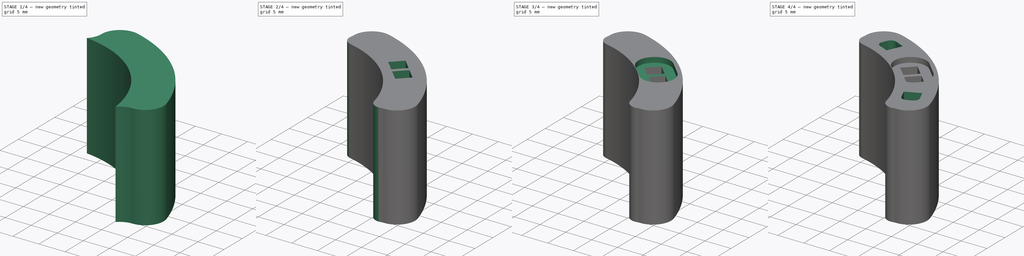
[diagram: build sequence overview — one tinted view per stage of 4, left to right]
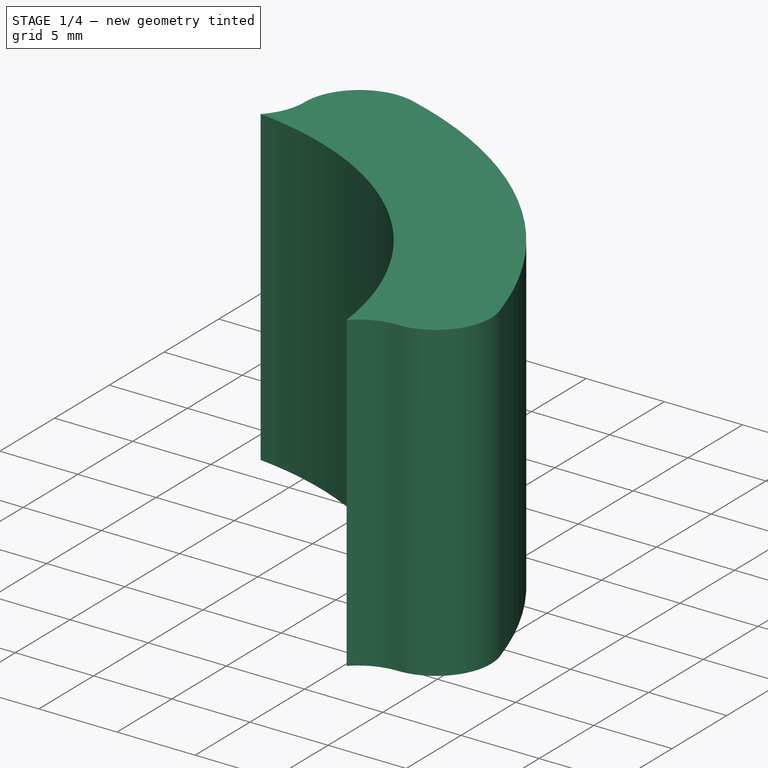
[diagram: stage 1 of 4 — iso view after this stage's code; geometry added in this stage tinted green]
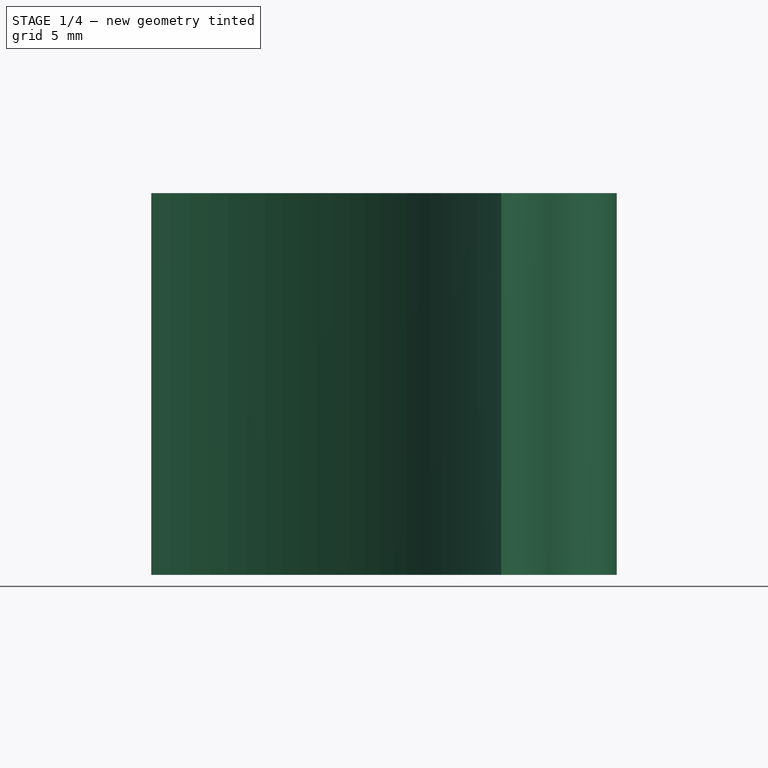
[diagram: stage 1 of 4 — front view after this stage's code; geometry added in this stage tinted green]
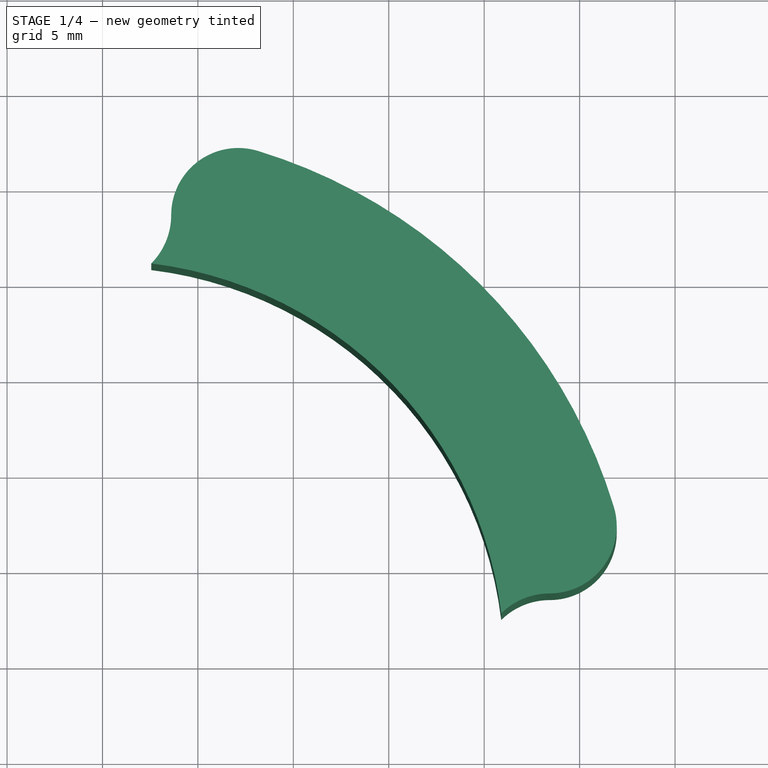
[diagram: stage 1 of 4 — top view after this stage's code; geometry added in this stage tinted green]
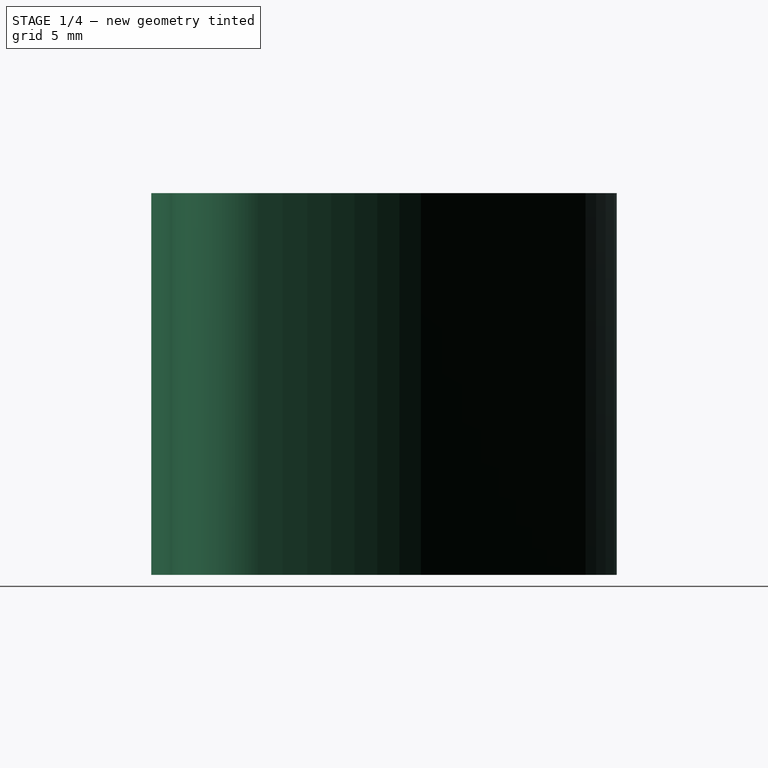
[diagram: stage 1 of 4 — right view after this stage's code; geometry added in this stage tinted green]
FCSTD DOCUMENT  (FreeCAD 1.0R39319 (Git))
Label: sede_presa_elettrica_sup
License: All rights reserved
objects: Sketcher::SketchObject×6, PartDesign::Pocket×5, PartDesign::Fillet×3, PartDesign::Pad×1, PartDesign::Body×1
note: 40 computed .brp shape members not serialized (recipe doc carries the construction recipe); baked Part::Feature solids carry a one-line shape summary decoded from their .brp

FEATURE [Sketcher::SketchObject] Sketch
  ArcFitTolerance = 1e-06
  AttachmentSupport = -> [XY_Plane]
  FullyConstrained = false
  MakeInternals = false
  MapMode = 5
  expr: Constraints[2] = 42.1
  sketch-geometry (10):
    g0: ArcOfCircle CenterX=0 CenterY=0 CenterZ=0 NormalX=0 NormalY=0 NormalZ=1 AngleXU=0 Radius=28 StartAngle=0.294862 EndAngle=1.27593
    g1: ArcOfCircle CenterX=0 CenterY=0 CenterZ=0 NormalX=0 NormalY=0 NormalZ=1 AngleXU=0 Radius=21.05 StartAngle=0.121788 EndAngle=1.44901
    g2: LineSegment [constr] StartX=0 StartY=0 StartZ=0 EndX=0 EndY=23.4279 EndZ=0
    g3: LineSegment [constr] StartX=0 StartY=0 StartZ=0 EndX=23.4279 EndY=0 EndZ=0
    g4: ArcOfCircle CenterX=0 CenterY=23.4279 CenterZ=0 NormalX=0 NormalY=0 NormalZ=1 AngleXU=0 Radius=3.6 StartAngle=5.5024 EndAngle=6.28319
    g5: ArcOfCircle CenterX=23.4279 CenterY=0 CenterZ=0 NormalX=0 NormalY=0 NormalZ=1 AngleXU=0 Radius=3.6 StartAngle=1.5708 EndAngle=2.35158
    g6: LineSegment [constr] StartX=3.6 StartY=31.6516 StartZ=0 EndX=3.6 EndY=15.2402 EndZ=0
    g7: LineSegment [constr] StartX=15.6595 StartY=3.6 StartZ=0 EndX=37.4128 EndY=3.6 EndZ=0
    g8: ArcOfCircle CenterX=7.1154 CenterY=23.4279 CenterZ=0 NormalX=0 NormalY=0 NormalZ=1 AngleXU=0 Radius=3.5154 StartAngle=1.27593 EndAngle=3.14159
    g9: ArcOfCircle CenterX=23.4279 CenterY=7.1154 CenterZ=0 NormalX=0 NormalY=0 NormalZ=1 AngleXU=0 Radius=3.5154 StartAngle=4.71239 EndAngle=6.57805
  constraints (26):
    c: Diameter(g0) = 56
    c: Coincident(g0,g-1)
    c: Diameter(g1) = 42.1
    c: Coincident(g1,g0)
    c: Distance(g2) = 23.4279
    c: Coincident(g2,g0)
    c: PointOnObject(g2,g-2)
    c: Distance(g3) = 23.4279
    c: Coincident(g3,g0)
    c: PointOnObject(g3,g-1)
    c: Diameter(g4) = 7.2
    c: Coincident(g4,g2)
    c: Diameter(g5) = 7.2
    c: Coincident(g5,g3)
    c: Vertical(g6)
    c: Horizontal(g7)
    c: Tangent(g6,g4)
    c: Tangent(g8,g6)
    c: Tangent(g9,g5)
    c: Tangent(g9,g7) = -1.5708
    c: Tangent(g5,g7) = 1.5708
    c: Coincident(g1,g4)
    c: Tangent(g0,g8) = -1.5708
    c: Coincident(g5,g1)
    c: Tangent(g0,g9) = -1.5708
    c: Coincident(g4,g8)
FEATURE [PartDesign::Pad] Pad
  Direction = (0,0,1)
  Length = 20
  Length2 = 10
  Profile = -> Sketch
  ReferenceAxis = -> Sketch [N_Axis]
  Refine = true
  Suppressed = false
  Type = 0
FEATURE [Sketcher::SketchObject] Sketch001
  ArcFitTolerance = 1e-06
  AttachmentSupport = -> [Pad]
  FullyConstrained = false
  MakeInternals = false
  MapMode = 5
  Placement = pos=(0,0,20) rot=(0,0,1;0rad)
  sketch-geometry (11):
    g0: Circle [constr] CenterX=0 CenterY=0 CenterZ=0 NormalX=0 NormalY=0 NormalZ=1 AngleXU=0 Radius=20.83
    g1: Circle [constr] CenterX=0 CenterY=0 CenterZ=0 NormalX=0 NormalY=0 NormalZ=1 AngleXU=0 Radius=28
    g2: LineSegment [constr] StartX=14.389 StartY=25.209 StartZ=0 EndX=28.5311 EndY=11.0669 EndZ=0
    g3: LineSegment [constr] StartX=9.32039 StartY=20.1377 StartZ=0 EndX=23.4625 EndY=5.99554 EndZ=0
    g4: LineSegment [constr] StartX=14.0368 StartY=24.8541 StartZ=0 EndX=28.1789 EndY=10.7119 EndZ=0
    g5: LineSegment [constr] StartX=11.6798 StartY=22.4947 StartZ=0 EndX=25.8219 EndY=8.35253 EndZ=0
    g6: LineSegment StartX=15.8675 StartY=22.6557 StartZ=0 EndX=22.6557 EndY=15.8675 EndZ=0
    g7: LineSegment StartX=11.5188 StartY=18.307 StartZ=0 EndX=18.307 EndY=11.5188 EndZ=0
    g8: LineSegment StartX=11.5188 StartY=18.307 StartZ=0 EndX=15.8675 EndY=22.6557 EndZ=0
    g9: LineSegment [constr] StartX=0 StartY=0 StartZ=0 EndX=19.799 EndY=19.799 EndZ=0
    g10: LineSegment StartX=18.307 StartY=11.5188 StartZ=0 EndX=22.6557 EndY=15.8675 EndZ=0
  constraints (29):
    c: Diameter(g0) = 41.66
    c: Coincident(g0,g-1)
    c: Diameter(g1) = 56
    c: Coincident(g1,g0)
    c: Distance(g2) = 20
    c: Angle(g-1,g2) = -0.785398
    c: Distance(g3) = 20
    c: Angle(g-1,g3) = -0.785398
    c: Distance(g4) = 20
    c: Angle(g-1,g4) = -0.785398
    c: Tangent(g2,g1)
    c: Distance(g4,g2) = 0.5
    c: Tangent(g3,g0)
    c: Distance(g5) = 20
    c: Angle(g-1,g5) = -0.785398
    c: Symmetric(g4,g3,g5)
    c: Distance(g6) = 9.6
    c: Angle(g-1,g6) = -0.785398
    c: Distance(g7) = 9.6
    c: Angle(g-1,g7) = -0.785398
    c: Coincident(g8,g7)
    c: Coincident(g8,g6)
    c: Distance(g7,g6) = 6.15
    c: Symmetric(g7,g6,g5)
    c: Coincident(g9,g0)
    c: PointOnObject(g9,g1)
    c: Symmetric(g6,g6,g9)
    c: Coincident(g10,g7)
    c: Coincident(g10,g6)
FEATURE [Sketcher::SketchObject] Sketch002
  ArcFitTolerance = 1e-06
  FullyConstrained = true
  MakeInternals = false
  MapMode = 5
  Placement = pos=(0,0,6) rot=(0,0,1;0rad)
  sketch-geometry (4):
    g0: LineSegment [constr] StartX=13.6931 StartY=20.4814 StartZ=0 EndX=20.4813 EndY=13.6931 EndZ=0
    g1: Circle CenterX=15.8144 CenterY=18.36 CenterZ=0 NormalX=0 NormalY=0 NormalZ=1 AngleXU=0 Radius=1
    g2: Circle CenterX=18.36 CenterY=15.8144 CenterZ=0 NormalX=0 NormalY=0 NormalZ=1 AngleXU=0 Radius=1
    g3: LineSegment [constr] StartX=14.9129 StartY=14.9129 StartZ=0 EndX=19.2616 EndY=19.2616 EndZ=0
  constraints (11):
    c: Symmetric(g-5,g-5,g0)
    c: Symmetric(g-6,g-6,g0)
    c: Diameter(g1) = 2
    c: PointOnObject(g1,g0)
    c: Diameter(g2) = 2
    c: PointOnObject(g2,g0)
    c: PointOnObject(g3,g-4)
    c: Symmetric(g-3,g-3,g3)
    c: Angle(g-1,g3) = 0.785398
    c: Distance(g1,g3) = 1.8
    c: Distance(g2,g3) = 1.8
FEATURE [PartDesign::Pocket] Pocket001
  BaseFeature = -> Pad
  Direction = (0,0,-1)
  Length = 5
  Length2 = 5
  Profile = -> Sketch002
  ReferenceAxis = -> Sketch002 [N_Axis]
  Refine = true
  Suppressed = false
  Type = 1
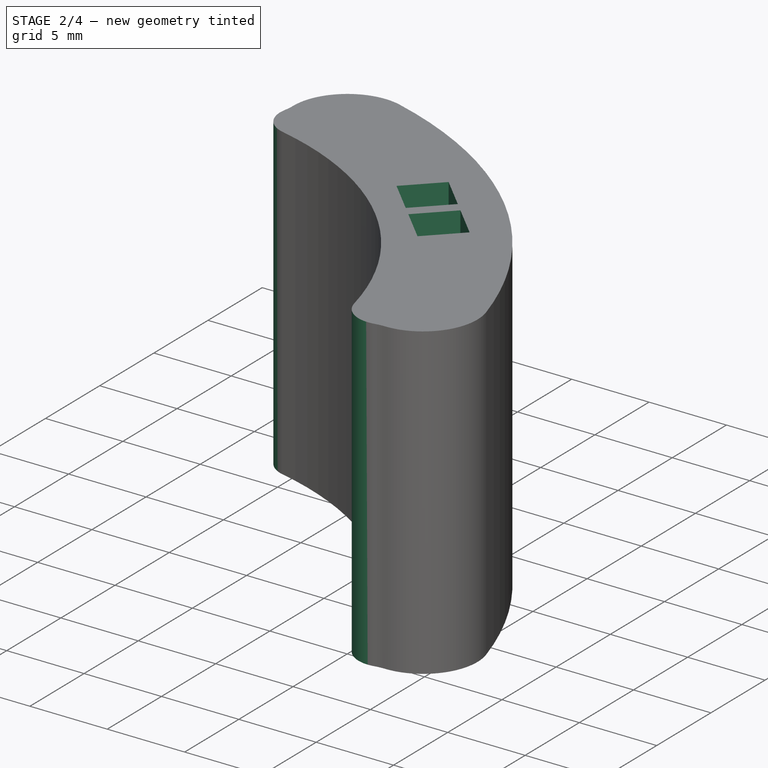
[diagram: stage 2 of 4 — iso view after this stage's code; geometry added in this stage tinted green]
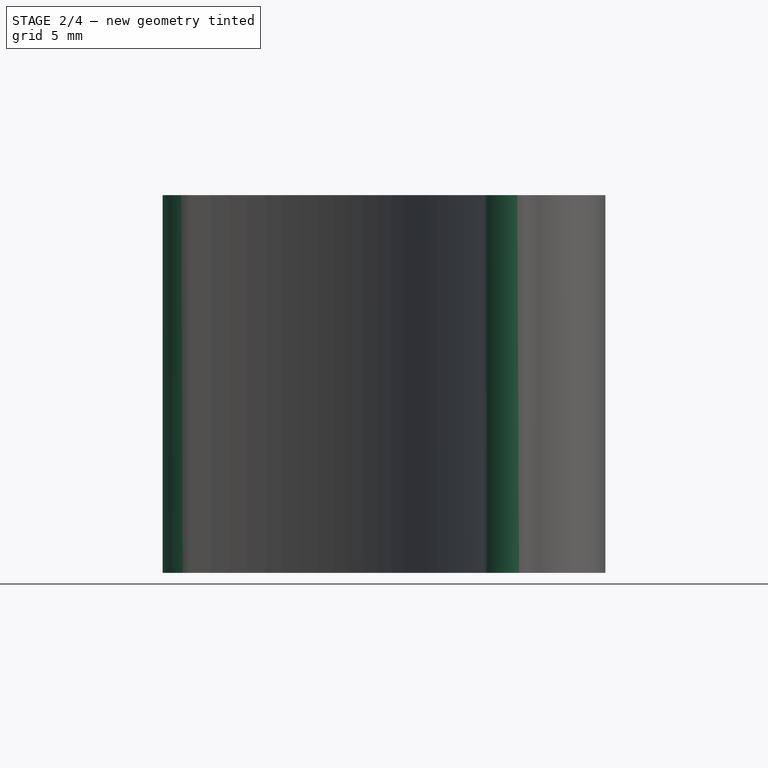
[diagram: stage 2 of 4 — front view after this stage's code; geometry added in this stage tinted green]
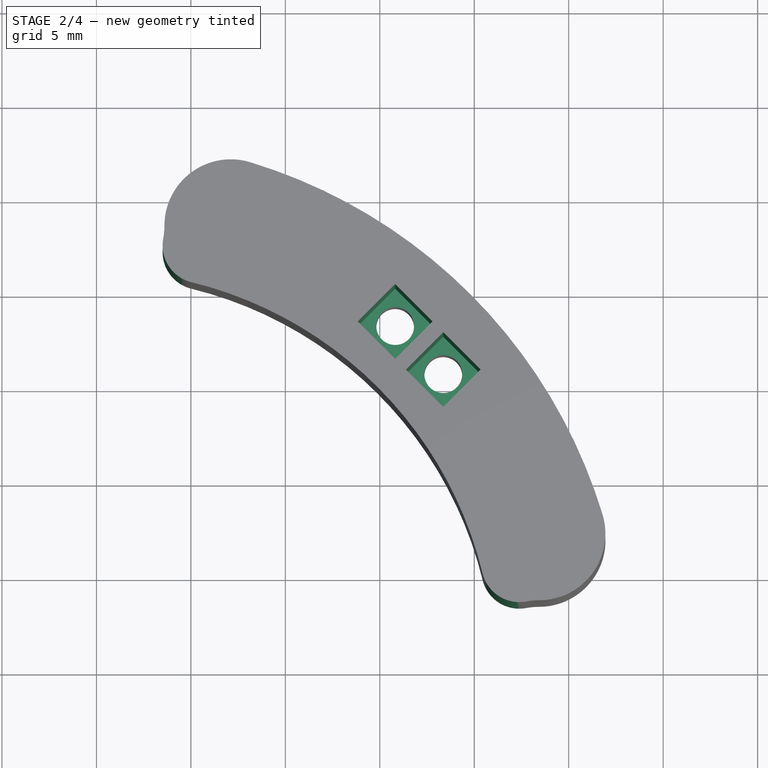
[diagram: stage 2 of 4 — top view after this stage's code; geometry added in this stage tinted green]
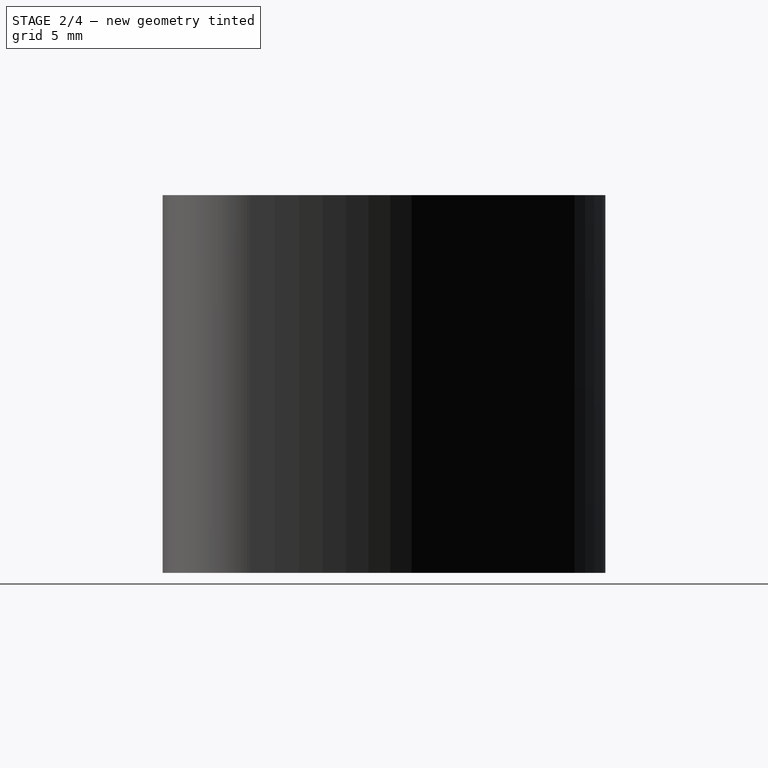
[diagram: stage 2 of 4 — right view after this stage's code; geometry added in this stage tinted green]
FEATURE [PartDesign::Fillet] Fillet001
  Base = -> Pocket001 [Edge19,Edge5]
  BaseFeature = -> Pocket001
  Radius = 2
  Refine = true
  SupportTransform = false
  Suppressed = false
  UseAllEdges = false
FEATURE [Sketcher::SketchObject] Sketch003
  ArcFitTolerance = 1e-06
  AttachmentSupport = -> [Fillet001]
  ExternalGeometry = -> [Fillet001,Sketch001]
  FullyConstrained = true
  MakeInternals = false
  MapMode = 5
  Placement = pos=(0,0,6) rot=(1,0,0;3.14159rad)
  sketch-geometry (14):
    g0: LineSegment StartX=13.8345 StartY=-18.36 StartZ=0 EndX=15.8144 EndY=-20.3399 EndZ=0
    g1: LineSegment StartX=15.8144 StartY=-20.3399 StartZ=0 EndX=17.7943 EndY=-18.36 EndZ=0
    g2: LineSegment StartX=17.7943 StartY=-18.36 StartZ=0 EndX=15.8144 EndY=-16.3801 EndZ=0
    g3: LineSegment StartX=15.8144 StartY=-16.3801 StartZ=0 EndX=13.8345 EndY=-18.36 EndZ=0
    g4: LineSegment StartX=16.3801 StartY=-15.8144 StartZ=0 EndX=18.36 EndY=-17.7943 EndZ=0
    g5: LineSegment StartX=18.36 StartY=-17.7943 StartZ=0 EndX=20.3399 EndY=-15.8144 EndZ=0
    g6: LineSegment StartX=20.3399 StartY=-15.8144 StartZ=0 EndX=18.36 EndY=-13.8345 EndZ=0
    g7: LineSegment StartX=18.36 StartY=-13.8345 StartZ=0 EndX=16.3801 EndY=-15.8144 EndZ=0
    g8: LineSegment [constr] StartX=15.8144 StartY=-16.3801 StartZ=0 EndX=15.8144 EndY=-20.3399 EndZ=0
    g9: LineSegment [constr] StartX=17.7943 StartY=-18.36 StartZ=0 EndX=13.8345 EndY=-18.36 EndZ=0
    g10: LineSegment [constr] StartX=18.36 StartY=-13.8345 StartZ=0 EndX=18.36 EndY=-17.7943 EndZ=0
    g11: LineSegment [constr] StartX=16.3801 StartY=-15.8144 StartZ=0 EndX=20.3399 EndY=-15.8144 EndZ=0
    g12: GeomPoint [constr] X=18.36 Y=-15.8144 Z=0
    g13: GeomPoint [constr] X=15.8144 Y=-18.36 Z=0
  constraints (34):
    c: Coincident(g0,g1)
    c: Coincident(g1,g2)
    c: Coincident(g2,g3)
    c: Coincident(g3,g0)
    c: Coincident(g4,g5)
    c: Coincident(g5,g6)
    c: Coincident(g6,g7)
    c: Coincident(g7,g4)
    c: Parallel(g3,g-4)
    c: Parallel(g1,g-7)
    c: Parallel(g0,g-5)
    c: Parallel(g2,g0)
    c: Parallel(g4,g-6)
    c: Parallel(g6,g-6)
    c: Parallel(g7,g-4)
    c: Parallel(g5,g-7)
    c: Coincident(g8,g2)
    c: Coincident(g8,g0)
    c: Coincident(g9,g1)
    c: Coincident(g9,g0)
    c: Coincident(g10,g6)
    c: Coincident(g10,g4)
    c: Coincident(g11,g4)
    c: Coincident(g11,g5)
    c: PointOnObject(g12,g10)
    c: PointOnObject(g13,g8)
    c: PointOnObject(g13,g9)
    c: PointOnObject(g12,g11)
    c: Coincident(g12,g-3)
    c: Equal(g4,g7)
    c: Equal(g2,g4)
    c: Equal(g2,g3)
    c: Distance(g0,g0) = 2.8
    c: Coincident(g13,g-8)
FEATURE [PartDesign::Pocket] Pocket
  BaseFeature = -> Fillet001
  Direction = (0,0,1)
  Length = 14
  Length2 = 5
  Profile = -> Sketch003
  ReferenceAxis = -> Sketch003 [N_Axis]
  Refine = true
  Suppressed = false
  Type = 0
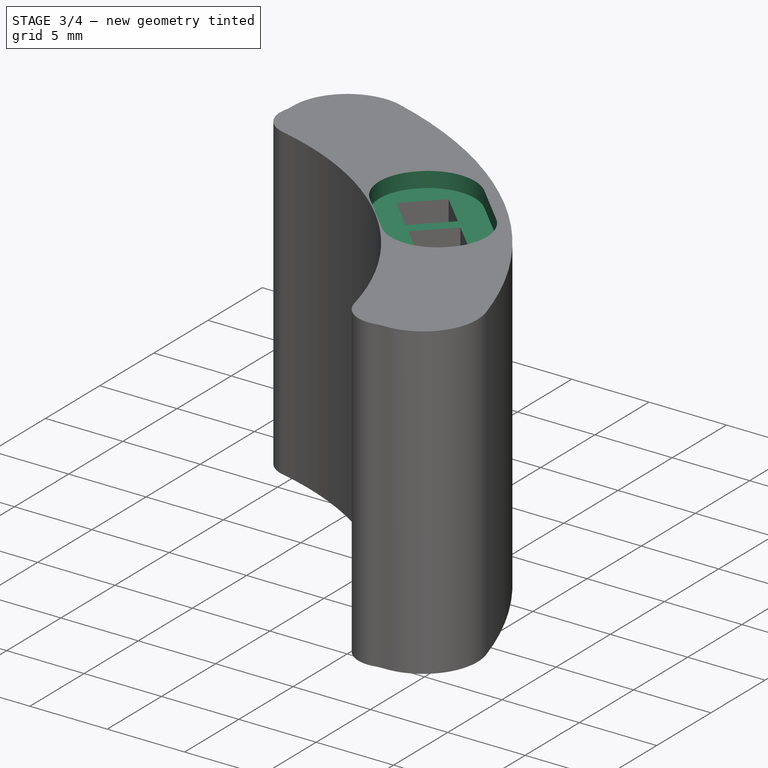
[diagram: stage 3 of 4 — iso view after this stage's code; geometry added in this stage tinted green]
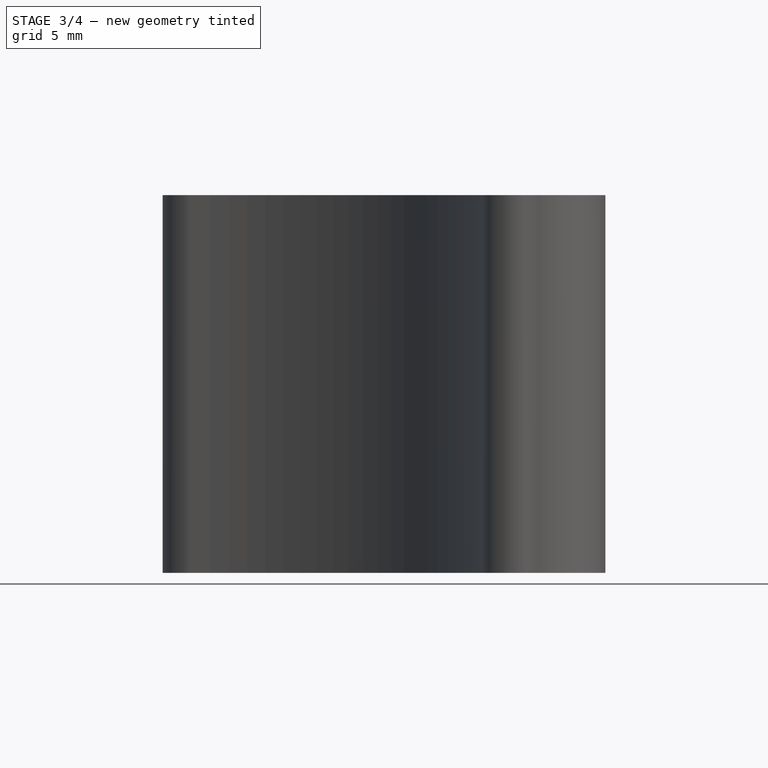
[diagram: stage 3 of 4 — front view after this stage's code; geometry added in this stage tinted green]
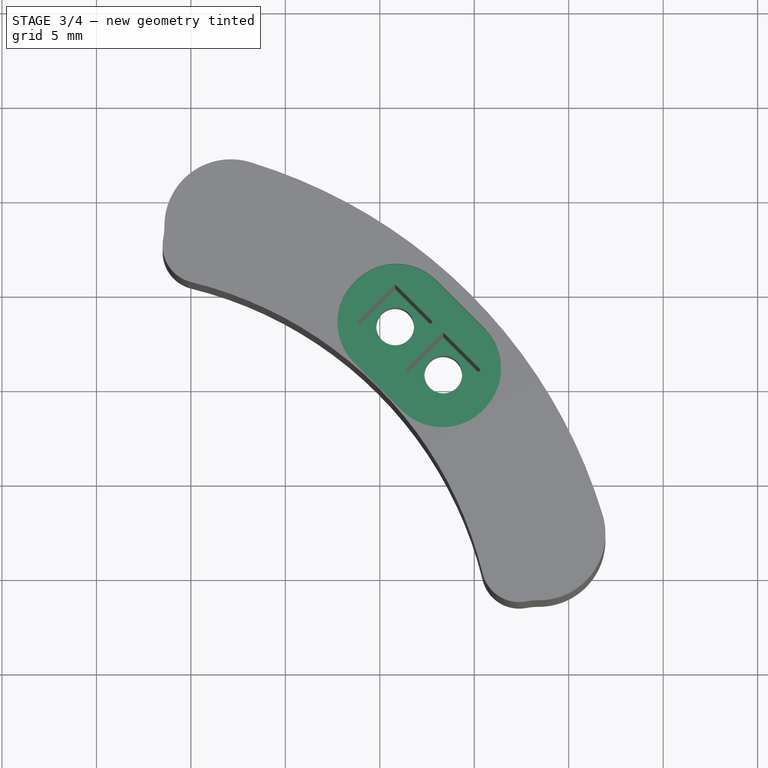
[diagram: stage 3 of 4 — top view after this stage's code; geometry added in this stage tinted green]
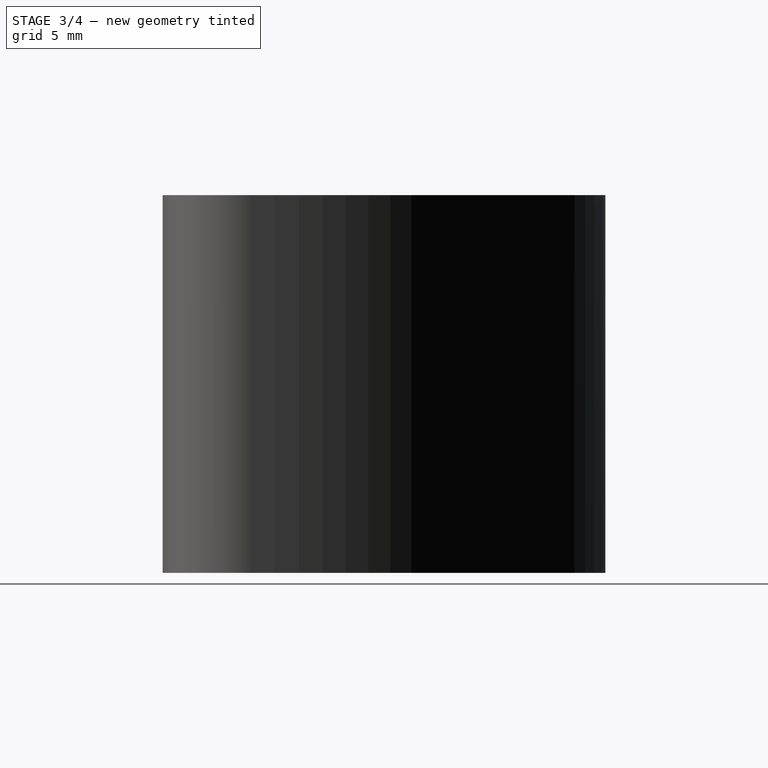
[diagram: stage 3 of 4 — right view after this stage's code; geometry added in this stage tinted green]
FEATURE [PartDesign::Pocket] Pocket002
  BaseFeature = -> Pocket
  Direction = (0,0,-1)
  Length = 1
  Length2 = 5
  Profile = -> Sketch001
  ReferenceAxis = -> Sketch001 [N_Axis]
  Refine = true
  Suppressed = false
  Type = 0
FEATURE [PartDesign::Fillet] Fillet
  Base = -> Pocket002 [Edge40,Edge38,Edge35,Edge36]
  BaseFeature = -> Pocket002
  Radius = 3
  Refine = true
  SupportTransform = false
  Suppressed = false
  UseAllEdges = false
FEATURE [Sketcher::SketchObject] Sketch004
  ArcFitTolerance = 1e-06
  AttachmentSupport = -> [Fillet]
  ExternalGeometry = -> [Fillet]
  FullyConstrained = true
  MakeInternals = false
  MapMode = 5
  Placement = pos=(0,0,6) rot=(0,0,1;0rad)
  sketch-geometry (8):
    g0: LineSegment StartX=15.8144 StartY=20.3399 StartZ=0 EndX=17.7943 EndY=18.36 EndZ=0
    g1: LineSegment StartX=17.7943 StartY=18.36 StartZ=0 EndX=15.8144 EndY=16.3801 EndZ=0
    g2: LineSegment StartX=15.8144 StartY=16.3801 StartZ=0 EndX=13.8345 EndY=18.36 EndZ=0
    g3: LineSegment StartX=18.36 StartY=13.8345 StartZ=0 EndX=20.3399 EndY=15.8144 EndZ=0
    g4: LineSegment StartX=20.3399 StartY=15.8144 StartZ=0 EndX=18.36 EndY=17.7943 EndZ=0
    g5: LineSegment StartX=18.36 StartY=17.7943 StartZ=0 EndX=16.3801 EndY=15.8144 EndZ=0
    g6: LineSegment StartX=16.3801 StartY=15.8144 StartZ=0 EndX=18.36 EndY=13.8345 EndZ=0
    g7: LineSegment StartX=15.8144 StartY=20.3399 StartZ=0 EndX=13.8345 EndY=18.36 EndZ=0
  constraints (16):
    c: Coincident(g-4,g0)
    c: Coincident(g0,g-6)
    c: Coincident(g0,g1)
    c: Coincident(g1,g-6)
    c: Coincident(g1,g2)
    c: Coincident(g2,g-5)
    c: Coincident(g-10,g3)
    c: Coincident(g3,g-9)
    c: Coincident(g3,g4)
    c: Coincident(g4,g-8)
    c: Coincident(g4,g5)
    c: Coincident(g5,g-10)
    c: Coincident(g5,g6)
    c: Coincident(g6,g3)
    c: Coincident(g7,g0)
    c: Coincident(g7,g2)
FEATURE [PartDesign::Pocket] Pocket003
  BaseFeature = -> Fillet
  Direction = (0,0,-1)
  Length = 1
  Length2 = 5
  Profile = -> Sketch004
  ReferenceAxis = -> Sketch004 [N_Axis]
  Refine = true
  Suppressed = false
  Type = 0
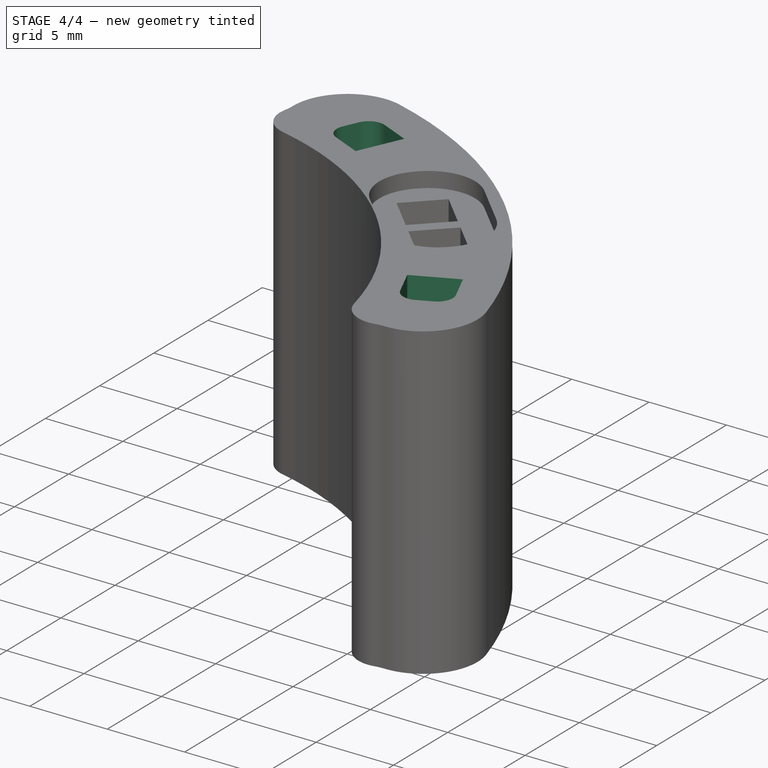
[diagram: stage 4 of 4 — iso view after this stage's code; geometry added in this stage tinted green]
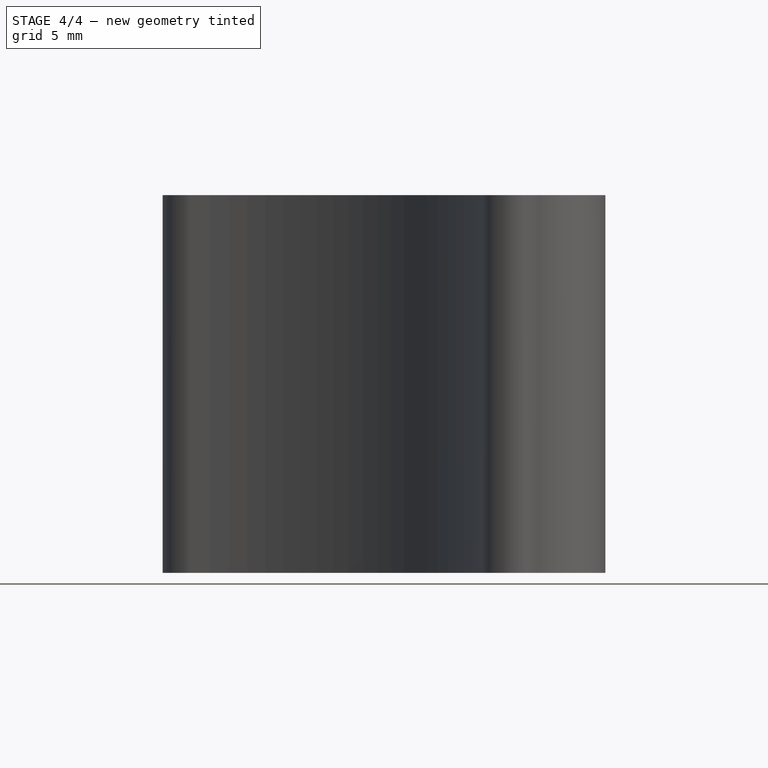
[diagram: stage 4 of 4 — front view after this stage's code; geometry added in this stage tinted green]
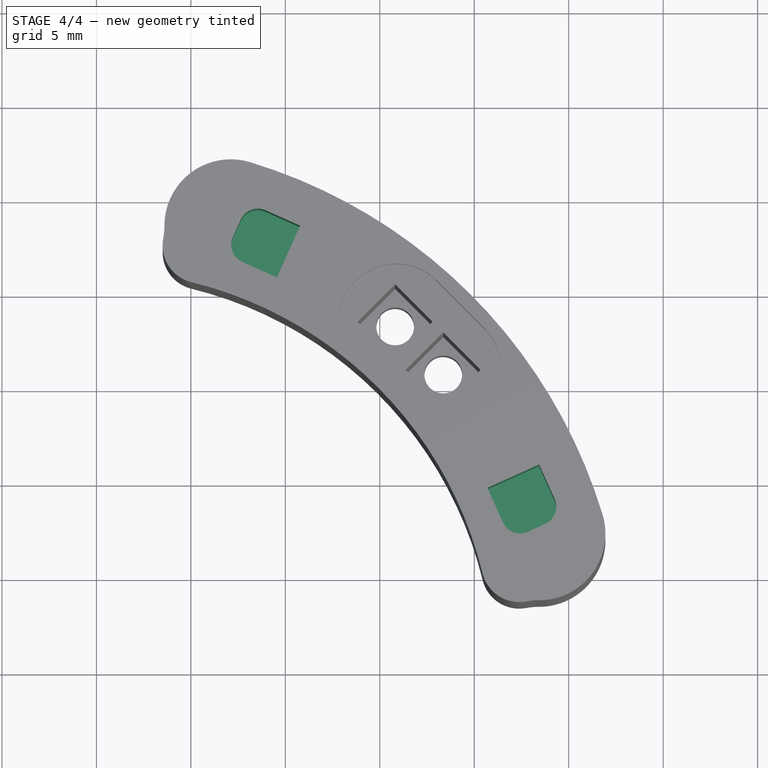
[diagram: stage 4 of 4 — top view after this stage's code; geometry added in this stage tinted green]
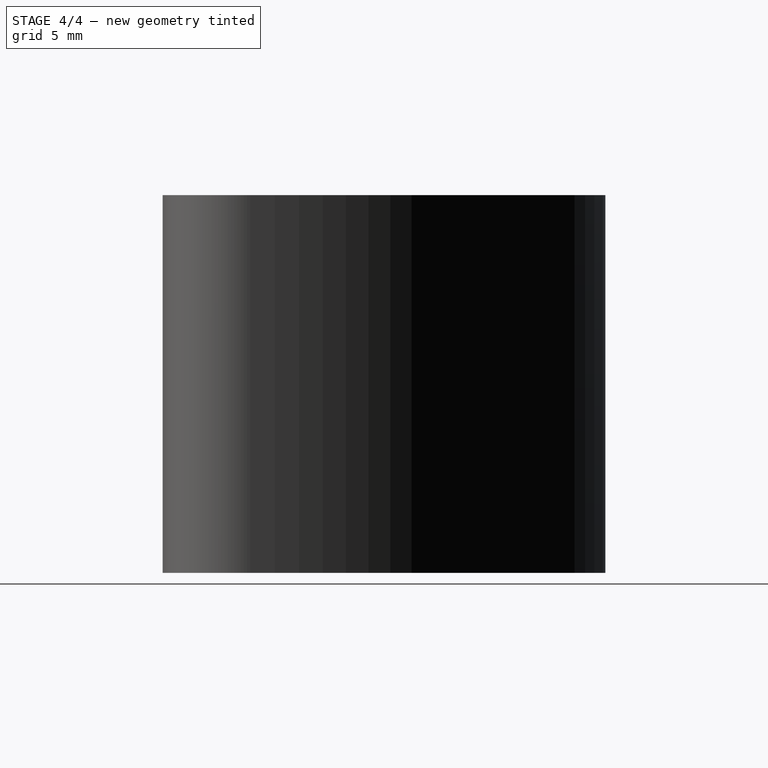
[diagram: stage 4 of 4 — right view after this stage's code; geometry added in this stage tinted green]
FEATURE [Sketcher::SketchObject] Sketch005
  ArcFitTolerance = 1e-06
  AttachmentSupport = -> [Pocket003]
  ExternalGeometry = -> [Pocket003]
  FullyConstrained = false
  MakeInternals = false
  MapMode = 5
  Placement = pos=(0,0,20) rot=(0,0,1;0rad)
  sketch-geometry (18):
    g0: LineSegment [constr] StartX=8.13701 StartY=26.7916 StartZ=0 EndX=6.11728 EndY=20.1415 EndZ=0
    g1: LineSegment [constr] StartX=13.6931 StartY=20.4814 StartZ=0 EndX=3.90719 EndY=24.8651 EndZ=0
    g2: LineSegment StartX=8.04445 StartY=24.6553 StartZ=0 EndX=10.7823 EndY=23.4289 EndZ=0
    g3: LineSegment StartX=10.7823 StartY=23.4289 StartZ=0 EndX=9.55586 EndY=20.6911 EndZ=0
    g4: LineSegment StartX=9.55586 StartY=20.6911 StartZ=0 EndX=6.818 EndY=21.9175 EndZ=0
    g5: LineSegment StartX=6.818 StartY=21.9175 StartZ=0 EndX=8.04445 EndY=24.6553 EndZ=0
    g6: LineSegment [constr] StartX=8.04445 StartY=24.6553 StartZ=0 EndX=9.55586 EndY=20.6911 EndZ=0
    g7: LineSegment [constr] StartX=6.818 StartY=21.9175 StartZ=0 EndX=10.7823 EndY=23.4289 EndZ=0
    g8: GeomPoint [constr] X=8.80015 Y=22.6732 Z=0
    g9: LineSegment [constr] StartX=20.4813 StartY=13.6931 StartZ=0 EndX=24.8747 EndY=3.91152 EndZ=0
    g10: LineSegment StartX=20.6951 StartY=9.55607 StartZ=0 EndX=21.9243 EndY=6.81943 EndZ=0
    g11: LineSegment StartX=21.9243 StartY=6.81943 StartZ=0 EndX=24.6609 EndY=8.04858 EndZ=0
    g12: LineSegment StartX=24.6609 StartY=8.04858 StartZ=0 EndX=23.4318 EndY=10.7852 EndZ=0
    g13: LineSegment StartX=23.4318 StartY=10.7852 StartZ=0 EndX=20.6951 EndY=9.55607 EndZ=0
    g14: LineSegment [constr] StartX=23.4318 StartY=10.7852 StartZ=0 EndX=21.9243 EndY=6.81943 EndZ=0
    g15: LineSegment [constr] StartX=20.6951 StartY=9.55607 StartZ=0 EndX=24.6609 EndY=8.04858 EndZ=0
    g16: GeomPoint [constr] X=23.4279 Y=7.1154 Z=0
    g17: GeomPoint [constr] X=22.678 Y=8.80232 Z=0
  constraints (43):
    c: Coincident(g0,g-3)
    c: PointOnObject(g0,g-9)
    c: Perpendicular(g-3,g0)
    c: PointOnObject(g1,g-3)
    c: Symmetric(g-7,g-7,g1)
    c: PointOnObject(g-3,g1)
    c: Coincident(g2,g3)
    c: Coincident(g3,g4)
    c: Coincident(g4,g5)
    c: Coincident(g5,g2)
    c: Parallel(g2,g4)
    c: Parallel(g2,g1)
    c: Parallel(g5,g3)
    c: Perpendicular(g2,g5)
    c: Equal(g2,g5)
    c: Distance(g2,g2) = 3
    c: Coincident(g6,g2)
    c: Coincident(g6,g3)
    c: Coincident(g7,g4)
    c: Coincident(g7,g2)
    c: PointOnObject(g8,g6)
    c: PointOnObject(g8,g7)
    c: Symmetric(g1,g1,g8)
    c: PointOnObject(g9,g-4)
    c: Symmetric(g-10,g-10,g9)
    c: Coincident(g10,g11)
    c: Coincident(g11,g12)
    c: Coincident(g12,g13)
    c: Coincident(g13,g10)
    c: Parallel(g10,g12)
    c: Parallel(g13,g11)
    c: Parallel(g12,g9)
    c: Perpendicular(g12,g13)
    c: Coincident(g14,g12)
    c: Coincident(g14,g10)
    c: Coincident(g15,g10)
    c: Coincident(g15,g11)
    c: Coincident(g16,g-4)
    c: Equal(g13,g10)
    c: Distance(g10,g10) = 3
    c: PointOnObject(g17,g15)
    c: PointOnObject(g17,g14)
    c: Symmetric(g9,g9,g17)
FEATURE [PartDesign::Pocket] Pocket004
  BaseFeature = -> Pocket003
  Direction = (0,0,-1)
  Length = 5
  Length2 = 5
  Profile = -> Sketch005
  ReferenceAxis = -> Sketch005 [N_Axis]
  Refine = true
  Suppressed = false
  Type = 0
FEATURE [PartDesign::Fillet] Fillet002
  Base = -> Pocket004 [Edge50,Edge49,Edge44,Edge42]
  BaseFeature = -> Pocket004
  Radius = 1
  Refine = true
  SupportTransform = false
  Suppressed = false
  UseAllEdges = false
FEATURE [PartDesign::Body] Body
  AllowCompound = false
  Group = -> [Sketch,Pad,Sketch001,Sketch002,Pocket001,Fillet001,Sketch003,Pocket,Pocket002,Fillet,Sketch004,Pocket003,Sketch005,Pocket004,Fillet002]
  Origin = -> Origin
  Tip = -> Fillet002
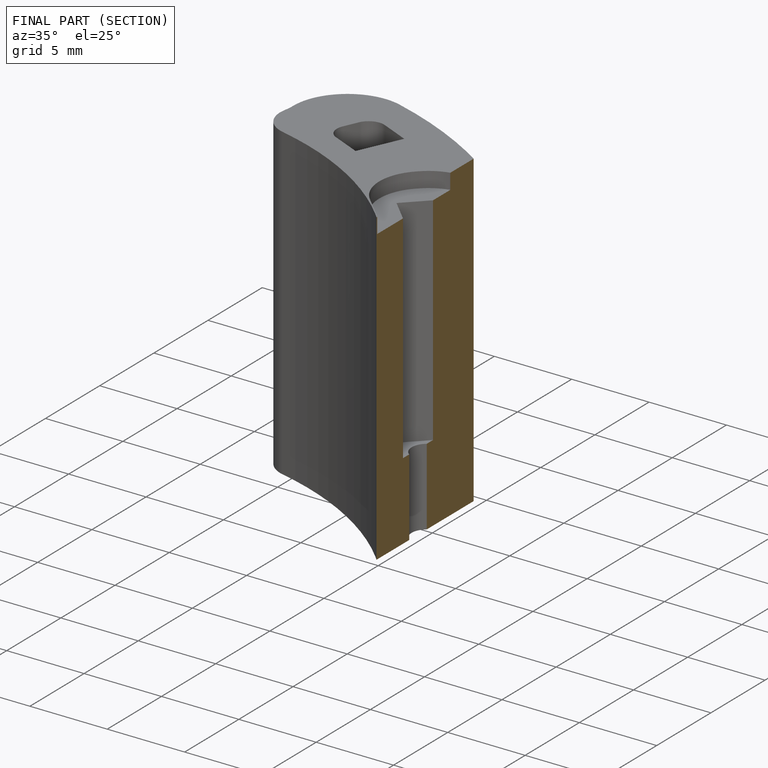
[diagram: finished part — half-section view (interior)]
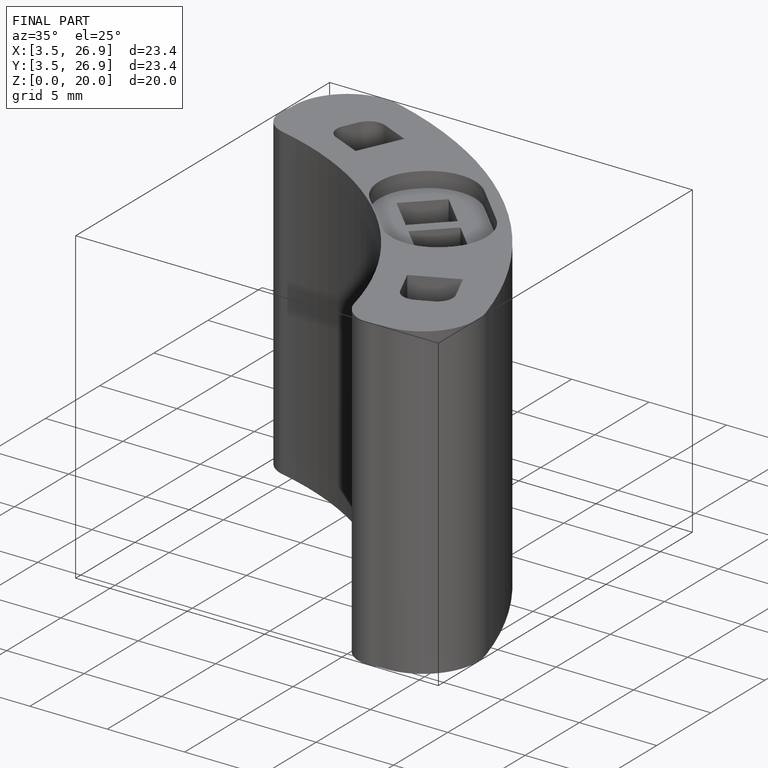
[diagram: finished part — iso view with bounding-box wireframe]
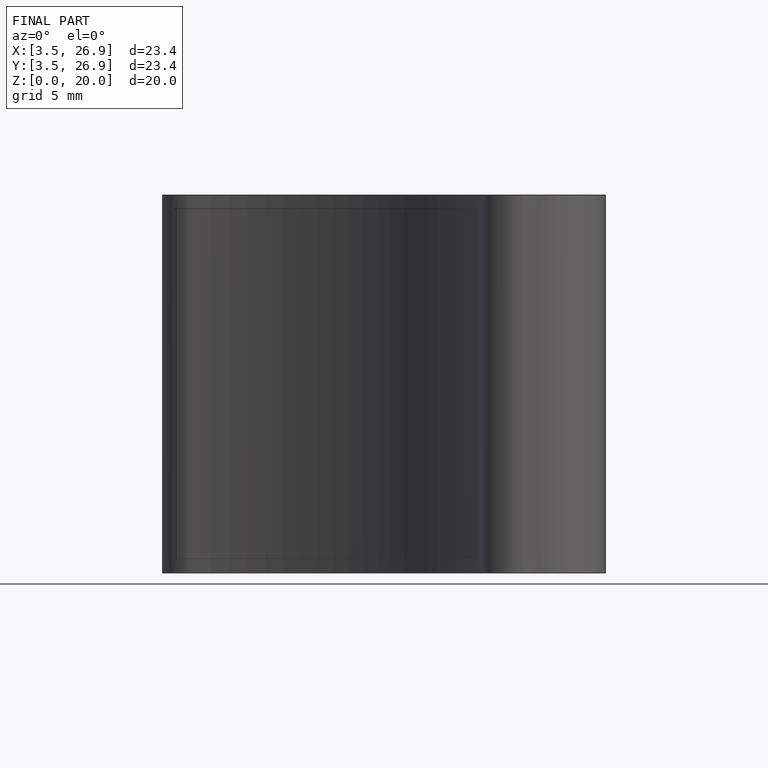
[diagram: finished part — front view with bounding-box wireframe]
